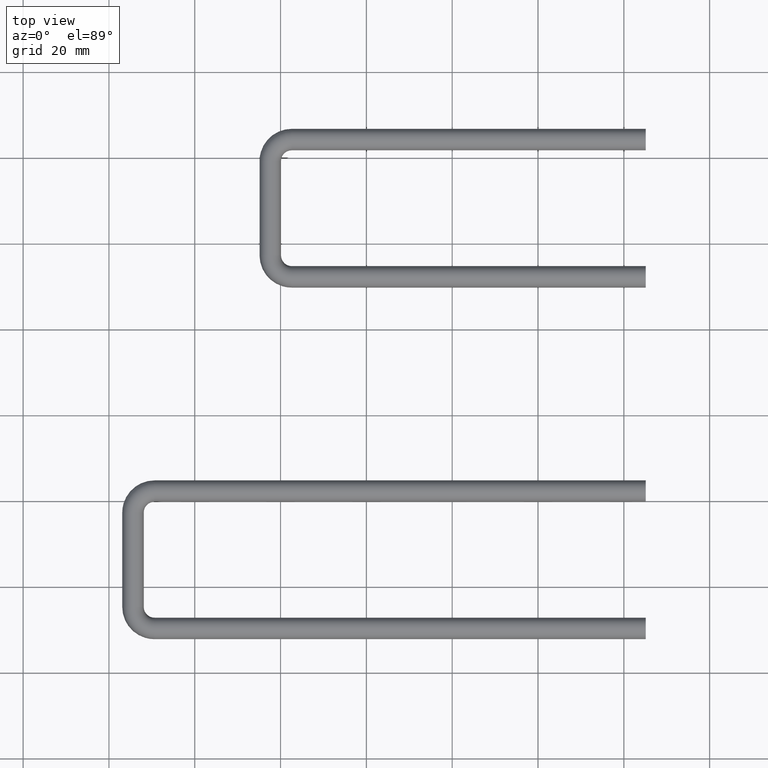
[diagram: clean part render]
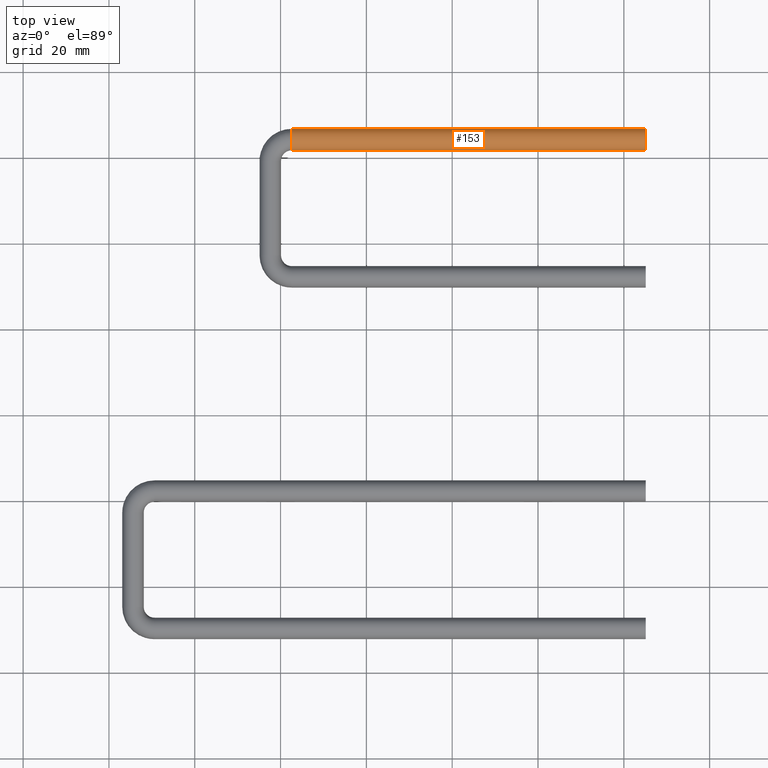
[diagram: same view with one face highlighted and labeled with its STEP entity id]
A machine part, top view. The second image highlights one B-rep face of the part: STEP entity #153.
In plain terms, the highlighted cylindrical surface (bore or boss wall) has radius 2.5 mm, axis along (-1, 0, 0).
Its self-contained STEP definition (entity closure, byte-faithful):
#39=FACE_BOUND('',#68,.T.);
#49=FACE_OUTER_BOUND('',#67,.T.);
#67=EDGE_LOOP('',(#127));
#68=EDGE_LOOP('',(#128));
#87=CIRCLE('',#174,2.5);
#88=CIRCLE('',#176,2.5);
#99=VERTEX_POINT('',#271);
#100=VERTEX_POINT('',#274);
#111=EDGE_CURVE('',#99,#99,#87,.T.);
#112=EDGE_CURVE('',#100,#100,#88,.T.);
#127=ORIENTED_EDGE('',*,*,#111,.F.);
#128=ORIENTED_EDGE('',*,*,#112,.T.);
#145=CYLINDRICAL_SURFACE('',#175,2.5);
#153=ADVANCED_FACE('',(#49,#39),#145,.T.);
#174=AXIS2_PLACEMENT_3D('',#272,#214,#215);
#175=AXIS2_PLACEMENT_3D('',#273,#216,#217);
#176=AXIS2_PLACEMENT_3D('',#275,#218,#219);
#214=DIRECTION('center_axis',(-1.,5.38289951333409E-17,0.));
#215=DIRECTION('ref_axis',(-5.38289951333409E-17,-1.,0.));
#216=DIRECTION('center_axis',(-1.,5.38289951333409E-17,0.));
#217=DIRECTION('ref_axis',(-5.38289951333409E-17,-1.,0.));
#218=DIRECTION('center_axis',(-1.,5.38289951333409E-17,0.));
#219=DIRECTION('ref_axis',(-5.38289951333409E-17,-1.,0.));
#271=CARTESIAN_POINT('',(-38.75,18.5,3.06161699786838E-16));
#272=CARTESIAN_POINT('Origin',(-38.75,16.,0.));
#273=CARTESIAN_POINT('Origin',(43.75,16.,0.));
#274=CARTESIAN_POINT('',(43.75,18.5,3.06161699786838E-16));
#275=CARTESIAN_POINT('Origin',(43.75,16.,0.));